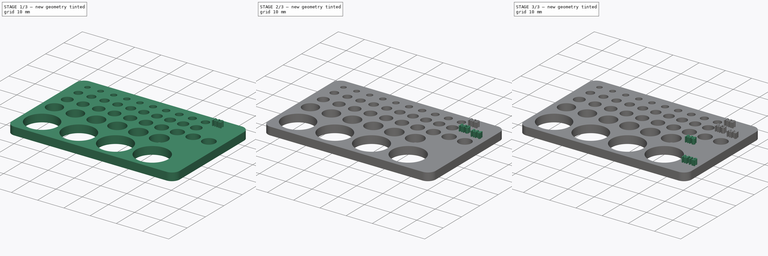
[diagram: build sequence overview — one tinted view per stage of 3, left to right]
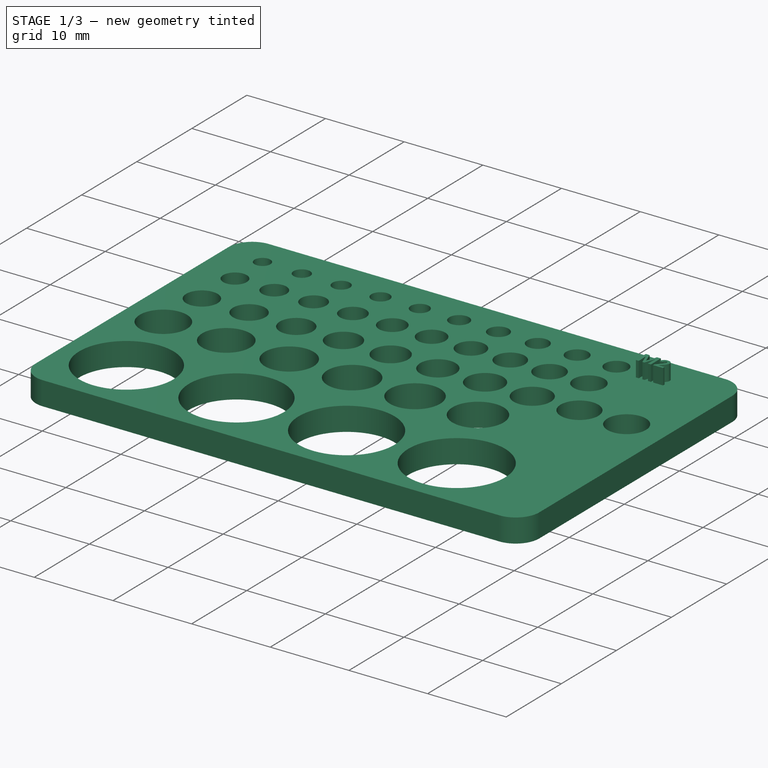
[diagram: stage 1 of 3 — iso view after this stage's code; geometry added in this stage tinted green]
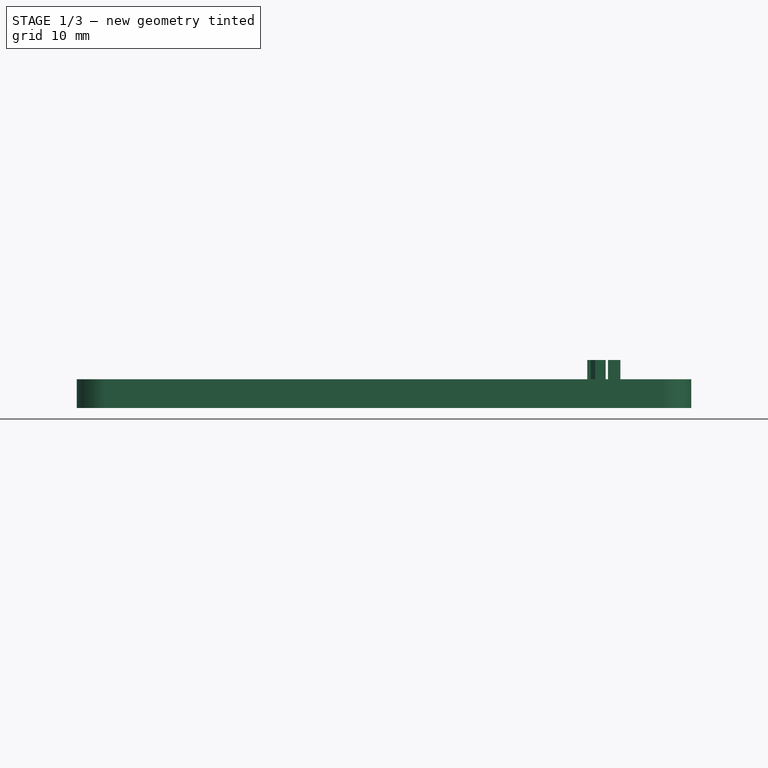
[diagram: stage 1 of 3 — front view after this stage's code; geometry added in this stage tinted green]
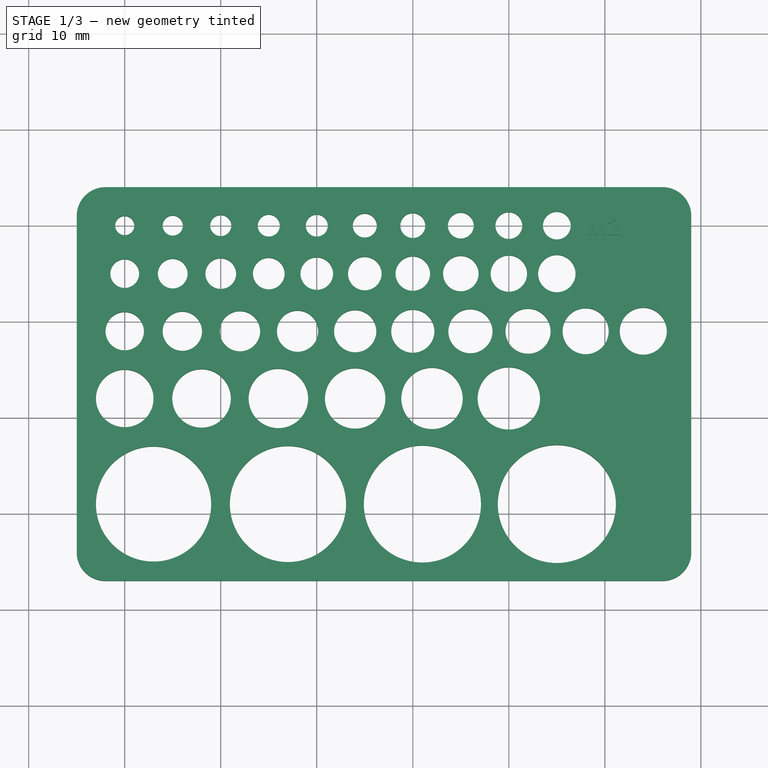
[diagram: stage 1 of 3 — top view after this stage's code; geometry added in this stage tinted green]
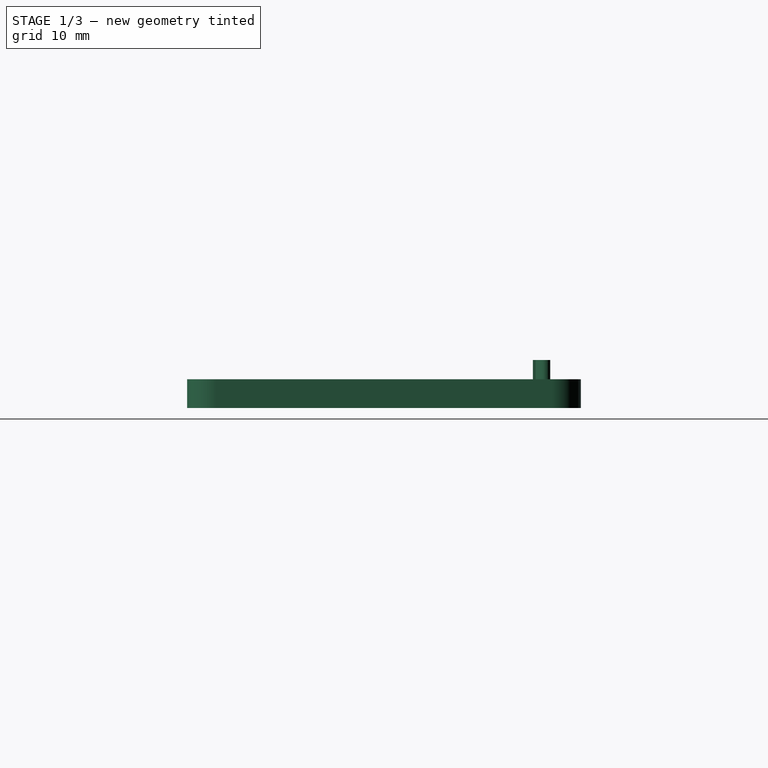
[diagram: stage 1 of 3 — right view after this stage's code; geometry added in this stage tinted green]
FCSTD DOCUMENT  (FreeCAD 0.19R)
Label: skrew-hole-tester
License: All rights reserved
LicenseURL: http://en.wikipedia.org/wiki/All_rights_reserved
objects: PartDesign::Pad×6, Part::Part2DObjectPython×5, Sketcher::SketchObject×1, PartDesign::Body×1
note: 19 computed .brp shape members not serialized (recipe doc carries the construction recipe); baked Part::Feature solids carry a one-line shape summary decoded from their .brp

FEATURE [Sketcher::SketchObject] Sketch
  FullyConstrained = true
  MapMode = 5
  Support = -> [XY_Plane]
  sketch-geometry (48):
    g0: LineSegment StartX=-2 StartY=4 StartZ=0 EndX=56 EndY=4 EndZ=0
    g1: LineSegment StartX=59 StartY=1 StartZ=0 EndX=59 EndY=-34 EndZ=0
    g2: LineSegment StartX=56 StartY=-37 StartZ=0 EndX=-2 EndY=-37 EndZ=0
    g3: LineSegment StartX=-5 StartY=-34 StartZ=0 EndX=-5 EndY=1 EndZ=0
    g4: Circle CenterX=0 CenterY=0 CenterZ=0 NormalX=0 NormalY=0 NormalZ=1 AngleXU=0 Radius=1
    g5: Circle CenterX=5 CenterY=0 CenterZ=0 NormalX=0 NormalY=0 NormalZ=1 AngleXU=0 Radius=1.05
    g6: Circle CenterX=10 CenterY=0 CenterZ=0 NormalX=0 NormalY=0 NormalZ=1 AngleXU=0 Radius=1.1
    g7: Circle CenterX=15 CenterY=0 CenterZ=0 NormalX=0 NormalY=0 NormalZ=1 AngleXU=0 Radius=1.15
    g8: Circle CenterX=20 CenterY=0 CenterZ=0 NormalX=0 NormalY=0 NormalZ=1 AngleXU=0 Radius=1.15
    g9: Circle CenterX=25 CenterY=0 CenterZ=0 NormalX=0 NormalY=0 NormalZ=1 AngleXU=0 Radius=1.25
    g10: Circle CenterX=30 CenterY=0 CenterZ=0 NormalX=0 NormalY=0 NormalZ=1 AngleXU=0 Radius=1.3
    g11: Circle CenterX=35 CenterY=0 CenterZ=0 NormalX=0 NormalY=0 NormalZ=1 AngleXU=0 Radius=1.35
    g12: Circle CenterX=40 CenterY=0 CenterZ=0 NormalX=0 NormalY=0 NormalZ=1 AngleXU=0 Radius=1.4
    g13: Circle CenterX=45 CenterY=0 CenterZ=0 NormalX=0 NormalY=0 NormalZ=1 AngleXU=0 Radius=1.45
    g14: Circle CenterX=0 CenterY=-5 CenterZ=0 NormalX=0 NormalY=0 NormalZ=1 AngleXU=0 Radius=1.5
    g15: Circle CenterX=5 CenterY=-5 CenterZ=0 NormalX=0 NormalY=0 NormalZ=1 AngleXU=0 Radius=1.55
    g16: Circle CenterX=10 CenterY=-5 CenterZ=0 NormalX=0 NormalY=0 NormalZ=1 AngleXU=0 Radius=1.6
    g17: Circle CenterX=15 CenterY=-5 CenterZ=0 NormalX=0 NormalY=0 NormalZ=1 AngleXU=0 Radius=1.65
    g18: Circle CenterX=20 CenterY=-5 CenterZ=0 NormalX=0 NormalY=0 NormalZ=1 AngleXU=0 Radius=1.7
    g19: Circle CenterX=25 CenterY=-5 CenterZ=0 NormalX=0 NormalY=0 NormalZ=1 AngleXU=0 Radius=1.75
    g20: Circle CenterX=30 CenterY=-5 CenterZ=0 NormalX=0 NormalY=0 NormalZ=1 AngleXU=0 Radius=1.8
    g21: Circle CenterX=35 CenterY=-5 CenterZ=0 NormalX=0 NormalY=0 NormalZ=1 AngleXU=0 Radius=1.85
    g22: Circle CenterX=40 CenterY=-5 CenterZ=0 NormalX=0 NormalY=0 NormalZ=1 AngleXU=0 Radius=1.9
    g23: Circle CenterX=45 CenterY=-5 CenterZ=0 NormalX=0 NormalY=0 NormalZ=1 AngleXU=0 Radius=1.95
    g24: Circle CenterX=0 CenterY=-11 CenterZ=0 NormalX=0 NormalY=0 NormalZ=1 AngleXU=0 Radius=2
    g25: Circle CenterX=6 CenterY=-11 CenterZ=0 NormalX=0 NormalY=0 NormalZ=1 AngleXU=0 Radius=2.05
    g26: Circle CenterX=12 CenterY=-11 CenterZ=0 NormalX=0 NormalY=0 NormalZ=1 AngleXU=0 Radius=2.1
    g27: Circle CenterX=18 CenterY=-11 CenterZ=0 NormalX=0 NormalY=0 NormalZ=1 AngleXU=0 Radius=2.15
    g28: Circle CenterX=24 CenterY=-11 CenterZ=0 NormalX=0 NormalY=0 NormalZ=1 AngleXU=0 Radius=2.2
    g29: Circle CenterX=30 CenterY=-11 CenterZ=0 NormalX=0 NormalY=0 NormalZ=1 AngleXU=0 Radius=2.25
    g30: Circle CenterX=36 CenterY=-11 CenterZ=0 NormalX=0 NormalY=0 NormalZ=1 AngleXU=0 Radius=2.3
    g31: Circle CenterX=42 CenterY=-11 CenterZ=0 NormalX=0 NormalY=0 NormalZ=1 AngleXU=0 Radius=2.35
    g32: Circle CenterX=48 CenterY=-11 CenterZ=0 NormalX=0 NormalY=0 NormalZ=1 AngleXU=0 Radius=2.4
    g33: Circle CenterX=54 CenterY=-11 CenterZ=0 NormalX=0 NormalY=0 NormalZ=1 AngleXU=0 Radius=2.45
    g34: Circle CenterX=0 CenterY=-18 CenterZ=0 NormalX=0 NormalY=0 NormalZ=1 AngleXU=0 Radius=3
    g35: Circle CenterX=8 CenterY=-18 CenterZ=0 NormalX=0 NormalY=0 NormalZ=1 AngleXU=0 Radius=3.05
    g36: Circle CenterX=16 CenterY=-18 CenterZ=0 NormalX=0 NormalY=0 NormalZ=1 AngleXU=0 Radius=3.1
    g37: Circle CenterX=24 CenterY=-18 CenterZ=0 NormalX=0 NormalY=0 NormalZ=1 AngleXU=0 Radius=3.15
    g38: Circle CenterX=32 CenterY=-18 CenterZ=0 NormalX=0 NormalY=0 NormalZ=1 AngleXU=0 Radius=3.2
    g39: Circle CenterX=40 CenterY=-18 CenterZ=0 NormalX=0 NormalY=0 NormalZ=1 AngleXU=0 Radius=3.25
    g40: Circle CenterX=3 CenterY=-29 CenterZ=0 NormalX=0 NormalY=0 NormalZ=1 AngleXU=0 Radius=6
    g41: Circle CenterX=17 CenterY=-29 CenterZ=0 NormalX=0 NormalY=0 NormalZ=1 AngleXU=0 Radius=6.05
    g42: Circle CenterX=31 CenterY=-29 CenterZ=0 NormalX=0 NormalY=0 NormalZ=1 AngleXU=0 Radius=6.1
    g43: Circle CenterX=45 CenterY=-29 CenterZ=0 NormalX=0 NormalY=0 NormalZ=1 AngleXU=0 Radius=6.15
    g44: ArcOfCircle CenterX=56 CenterY=-34 CenterZ=0 NormalX=0 NormalY=0 NormalZ=1 AngleXU=0 Radius=3 StartAngle=4.71239 EndAngle=6.28319
    g45: ArcOfCircle CenterX=56 CenterY=1 CenterZ=0 NormalX=0 NormalY=0 NormalZ=1 AngleXU=0 Radius=3 StartAngle=0 EndAngle=1.5708
    g46: ArcOfCircle CenterX=-2 CenterY=1 CenterZ=0 NormalX=0 NormalY=0 NormalZ=1 AngleXU=0 Radius=3 StartAngle=1.5708 EndAngle=3.14159
    g47: ArcOfCircle CenterX=-2 CenterY=-34 CenterZ=0 NormalX=0 NormalY=0 NormalZ=1 AngleXU=0 Radius=3 StartAngle=3.14159 EndAngle=4.71239
  constraints (139):
    c: Horizontal(g0)
    c: Horizontal(g2)
    c: Vertical(g1)
    c: Vertical(g3)
    c: Coincident(g4,g-1)
    c: Diameter(g4) = 2
    c: PointOnObject(g5,g-1)
    c: PointOnObject(g6,g-1)
    c: PointOnObject(g7,g-1)
    c: Diameter(g5) = 2.1
    c: Diameter(g6) = 2.2
    c: Diameter(g7) = 2.3
    c: PointOnObject(g8,g-1)
    c: PointOnObject(g9,g-1)
    c: PointOnObject(g10,g-1)
    c: PointOnObject(g11,g-1)
    c: PointOnObject(g12,g-1)
    c: Diameter(g8) = 2.3
    c: Diameter(g9) = 2.5
    c: Diameter(g10) = 2.6
    c: Diameter(g11) = 2.7
    c: Diameter(g12) = 2.8
    c: PointOnObject(g13,g-1)
    c: Diameter(g13) = 2.9
    c: DistanceX(g4,g5) = 5
    c: DistanceX(g5,g6) = 5
    c: DistanceX(g6,g7) = 5
    c: DistanceX(g7,g8) = 5
    c: DistanceX(g9,g10) = 5
    c: DistanceX(g10,g11) = 5
    c: DistanceX(g11,g12) = 5
    c: DistanceX(g12,g13) = 5
    c: PointOnObject(g14,g-2)
    c: Diameter(g14) = 3
    c: DistanceY(g14,g4) = 5
    c: Horizontal(g15,g16)
    c: Horizontal(g16,g17)
    c: Horizontal(g17,g14)
    c: Horizontal(g17,g18)
    c: Horizontal(g18,g19)
    c: Diameter(g15) = 3.1
    c: Diameter(g16) = 3.2
    c: Diameter(g17) = 3.3
    c: Diameter(g18) = 3.4
    c: Diameter(g19) = 3.5
    c: Diameter(g20) = 3.6
    c: Diameter(g21) = 3.7
    c: Diameter(g22) = 3.8
    c: Diameter(g23) = 3.9
    c: DistanceX(g8,g9) = 5
    c: DistanceX(g14,g15) = 5
    c: DistanceX(g15,g16) = 5
    c: DistanceX(g16,g17) = 5
    c: DistanceX(g17,g18) = 5
    c: DistanceX(g18,g19) = 5
    c: DistanceX(g19,g20) = 5
    c: DistanceX(g20,g21) = 5
    c: Horizontal(g20,g19)
    c: DistanceX(g21,g22) = 5
    c: DistanceX(g22,g23) = 5
    c: Horizontal(g21,g22)
    c: Horizontal(g22,g23)
    c: Horizontal(g23,g20)
    c: PointOnObject(g24,g-2)
    c: DistanceY(g24,g14) = 6
    c: Diameter(g24) = 4
    c: Horizontal(g25,g26)
    c: Horizontal(g26,g27)
    c: Horizontal(g27,g28)
    c: Horizontal(g28,g29)
    c: Horizontal(g29,g30)
    c: Horizontal(g30,g31)
    c: Horizontal(g31,g32)
    c: Horizontal(g32,g33)
    c: Diameter(g25) = 4.1
    c: Diameter(g26) = 4.2
    c: Diameter(g27) = 4.3
    c: Diameter(g28) = 4.4
    c: Diameter(g29) = 4.5
    c: Diameter(g30) = 4.6
    c: Diameter(g31) = 4.7
    c: Diameter(g32) = 4.8
    c: Diameter(g33) = 4.9
    c: DistanceX(g24,g25) = 6
    c: DistanceX(g32,g33) = 6
    c: DistanceX(g25,g26) = 6
    c: DistanceX(g26,g27) = 6
    c: Horizontal(g25,g24)
    c: DistanceX(g27,g28) = 6
    c: DistanceX(g28,g29) = 6
    c: DistanceX(g29,g30) = 6
    c: DistanceX(g30,g31) = 6
    c: DistanceX(g31,g32) = 6
    c: PointOnObject(g34,g-2)
    c: Diameter(g34) = 6
    c: Horizontal(g38,g37)
    c: Horizontal(g37,g36)
    c: Horizontal(g36,g35)
    c: Horizontal(g35,g34)
    c: Diameter(g35) = 6.1
    c: Diameter(g36) = 6.2
    c: Diameter(g37) = 6.3
    c: Diameter(g38) = 6.4
    c: Horizontal(g39,g38)
    c: Diameter(g39) = 6.5
    c: DistanceY(g34,g24) = 7
    c: DistanceX(g34,g35) = 8
    c: DistanceX(g35,g36) = 8
    c: DistanceX(g36,g37) = 8
    c: DistanceX(g37,g38) = 8
    c: DistanceX(g38,g39) = 8
    c: Diameter(g40) = 12
    c: DistanceX(g4,g40) = 3
    c: DistanceY(g40,g34) = 11
    c: Diameter(g41) = 12.1
    c: Diameter(g42) = 12.2
    c: Diameter(g43) = 12.3
    c: Horizontal(g40,g41)
    c: Horizontal(g41,g42)
    c: Horizontal(g42,g43)
    c: DistanceX(g40,g41) = 14
    c: DistanceX(g41,g42) = 14
    c: DistanceX(g42,g43) = 14
    c: Tangent(g1,g44) = 1.5708
    c: Tangent(g2,g44) = 1.5708
    c: Tangent(g0,g45) = 1.5708
    c: Tangent(g1,g45) = 1.5708
    c: Tangent(g0,g46) = 1.5708
    c: Tangent(g3,g46) = 1.5708
    c: Tangent(g2,g47) = 1.5708
    c: Tangent(g3,g47) = 1.5708
    c: DistanceX(g3,g47) = 3
    c: DistanceX(g3,g0) = 3
    c: DistanceX(g0,g1) = 3
    c: DistanceX(g2,g1) = 3
    c: DistanceX(g3,g40) = 8
    c: DistanceY(g2,g40) = 8
    c: DistanceX(g33,g1) = 5
    c: DistanceY(g4,g0) = 4
FEATURE [PartDesign::Pad] Pad
  Direction = (1,1,1)
  Length = 3
  Length2 = 100
  Profile = -> Sketch
  Type = 0
FEATURE [Part::Part2DObjectPython] ShapeString  # Draft 2D object (typed FeaturePython)
  AttachmentOffset = pos=(48,-1,0) rot=(0,0,1;0rad)
  FontFile = <userpath>/libraries/font/Roboto-Bold.ttf
  MapMode = 5
  Placement = pos=(48,-1,3) rot=(0,0,1;0rad)
  Size = 2
  String = M2
  Support = -> [Pad]
  Tracking = 0
FEATURE [PartDesign::Pad] Pad001
  BaseFeature = -> Pad
  Direction = (1,1,1)
  Length = 2
  Length2 = 100
  Profile = -> ShapeString
  Type = 0
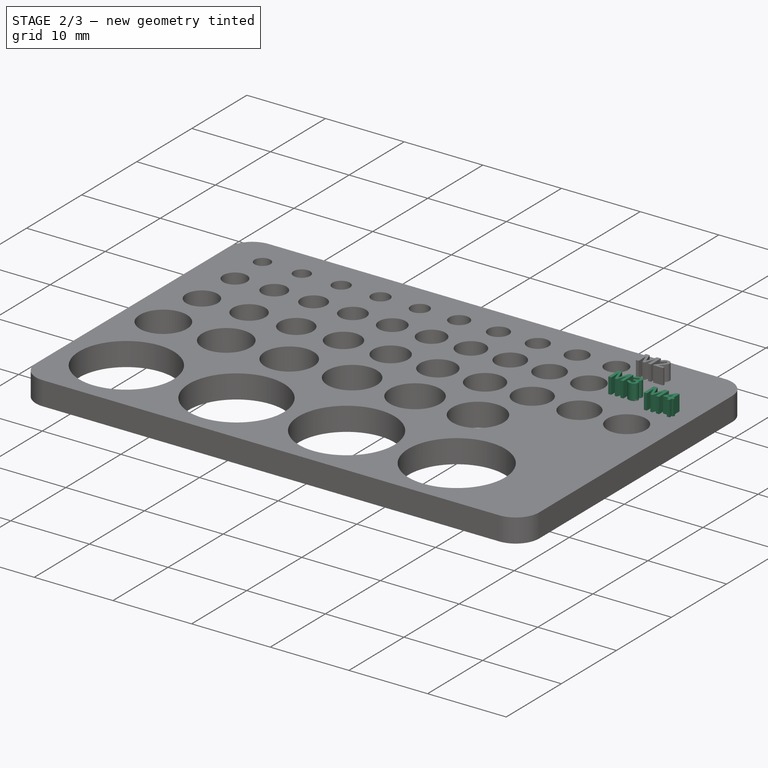
[diagram: stage 2 of 3 — iso view after this stage's code; geometry added in this stage tinted green]
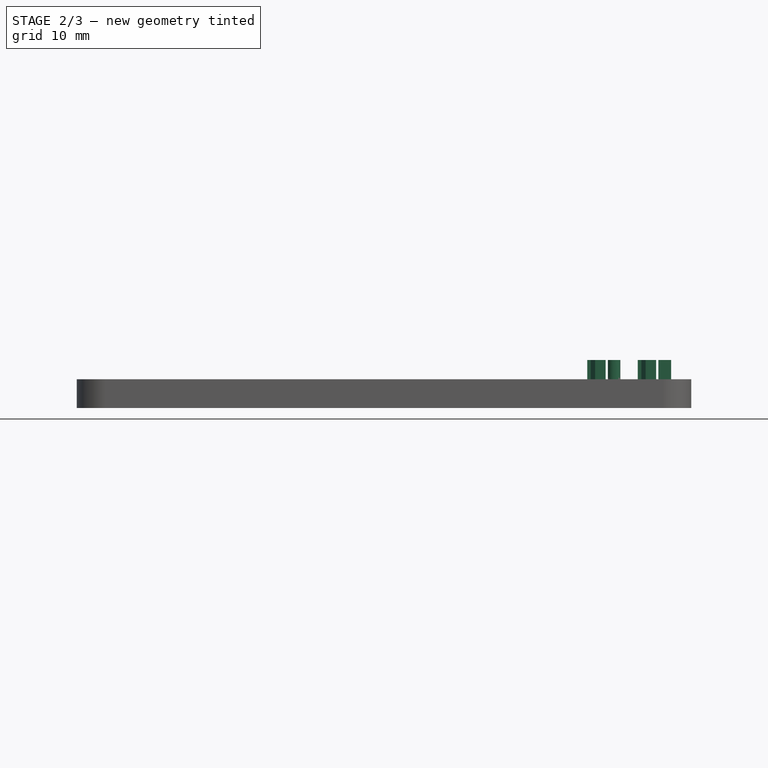
[diagram: stage 2 of 3 — front view after this stage's code; geometry added in this stage tinted green]
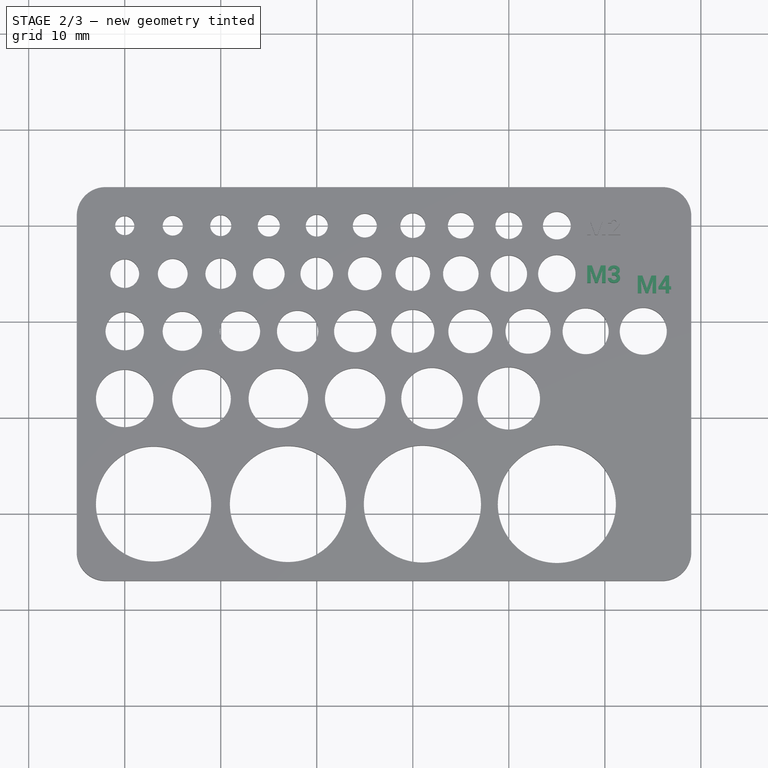
[diagram: stage 2 of 3 — top view after this stage's code; geometry added in this stage tinted green]
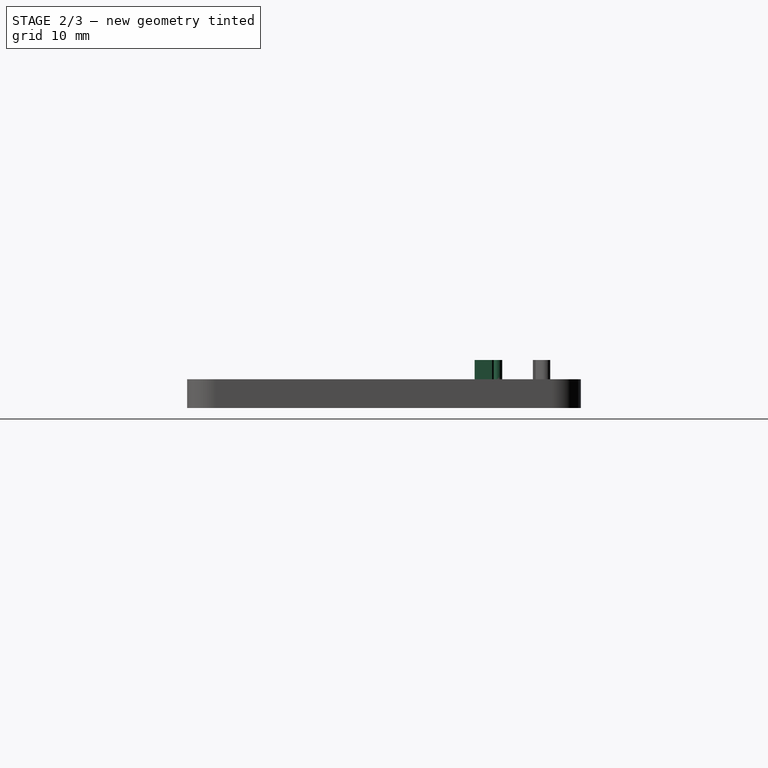
[diagram: stage 2 of 3 — right view after this stage's code; geometry added in this stage tinted green]
FEATURE [Part::Part2DObjectPython] ShapeString001  # Draft 2D object (typed FeaturePython)
  FontFile = <userpath>/libraries/font/Roboto-Bold.ttf
  Placement = pos=(48,-6,3) rot=(0,0,1;0rad)
  Size = 2
  String = M3
  Tracking = 0
FEATURE [PartDesign::Pad] Pad002
  BaseFeature = -> Pad001
  Direction = (1,1,1)
  Length = 2
  Length2 = 100
  Profile = -> ShapeString001
  Type = 0
FEATURE [Part::Part2DObjectPython] ShapeString002  # Draft 2D object (typed FeaturePython)
  FontFile = <userpath>/libraries/font/Roboto-Bold.ttf
  Placement = pos=(53.26,-7.06,3) rot=(0.945214,0.023572,-0.3256;0rad)
  Size = 2
  String = M4
  Tracking = 0
FEATURE [Part::Part2DObjectPython] ShapeString003  # Draft 2D object (typed FeaturePython)
  FontFile = <userpath>/libraries/font/Roboto-Bold.ttf
  Placement = pos=(45,-18,3) rot=(0.945214,0.023572,-0.3256;0rad)
  Size = 2
  String = M6
  Tracking = 0
FEATURE [Part::Part2DObjectPython] ShapeString004  # Draft 2D object (typed FeaturePython)
  FontFile = <userpath>/libraries/font/Roboto-Bold.ttf
  Placement = pos=(52.71,-30.75,3) rot=(0,0,1;0rad)
  Size = 2
  String = M12
  Tracking = 0
FEATURE [PartDesign::Pad] Pad003
  BaseFeature = -> Pad002
  Direction = (1,1,1)
  Length = 2
  Length2 = 100
  Profile = -> ShapeString002
  Type = 0
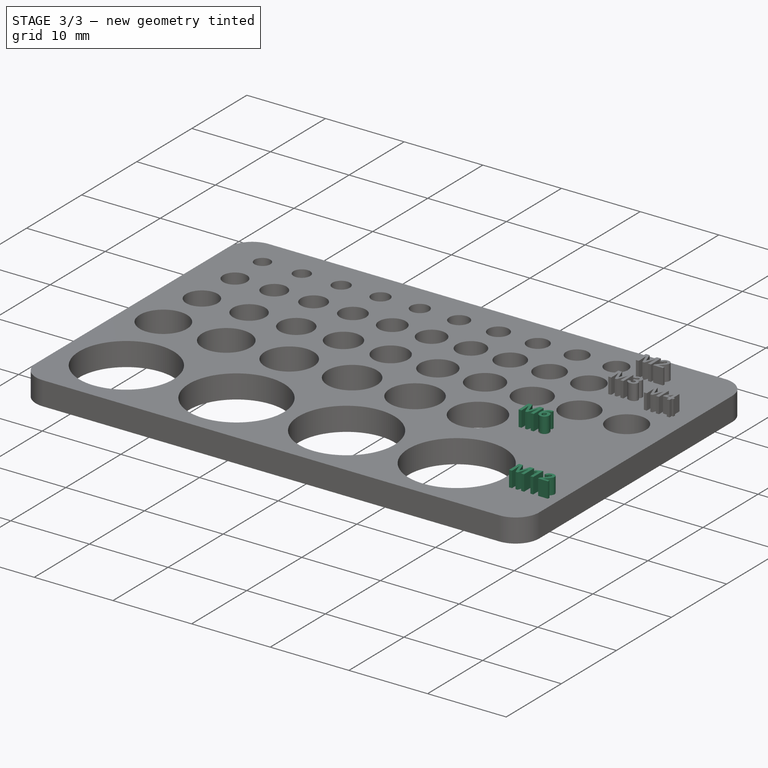
[diagram: stage 3 of 3 — iso view after this stage's code; geometry added in this stage tinted green]
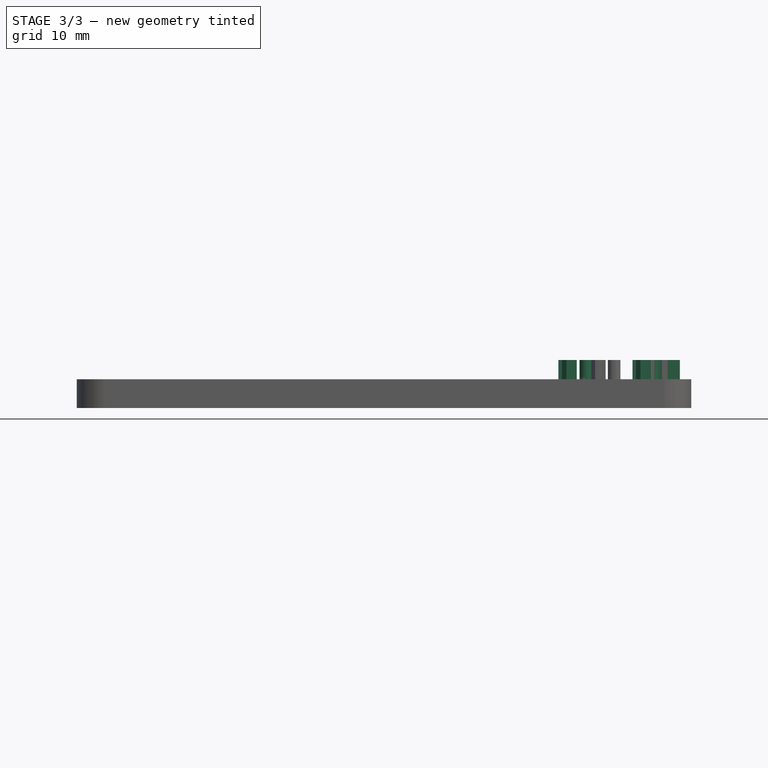
[diagram: stage 3 of 3 — front view after this stage's code; geometry added in this stage tinted green]
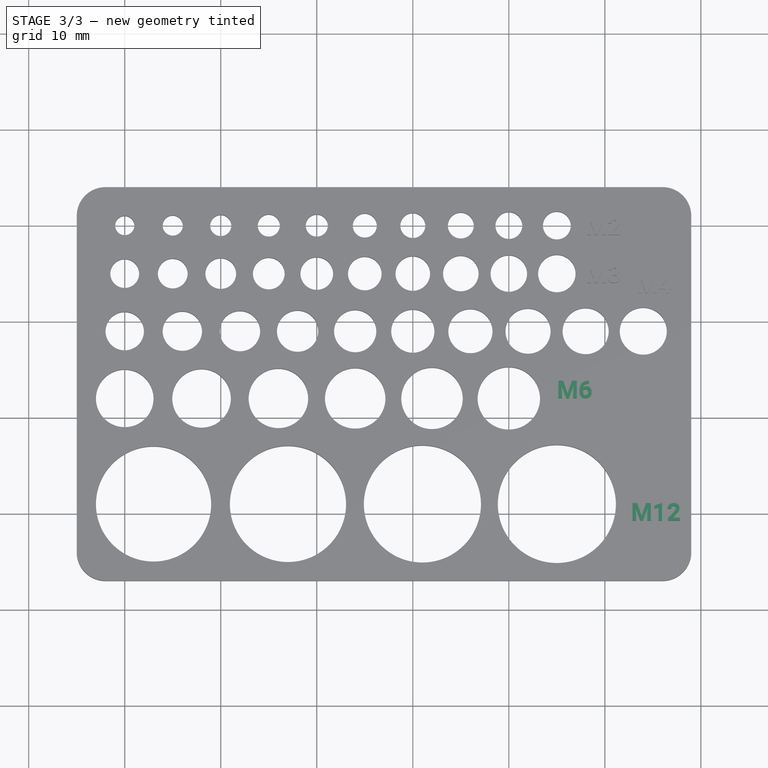
[diagram: stage 3 of 3 — top view after this stage's code; geometry added in this stage tinted green]
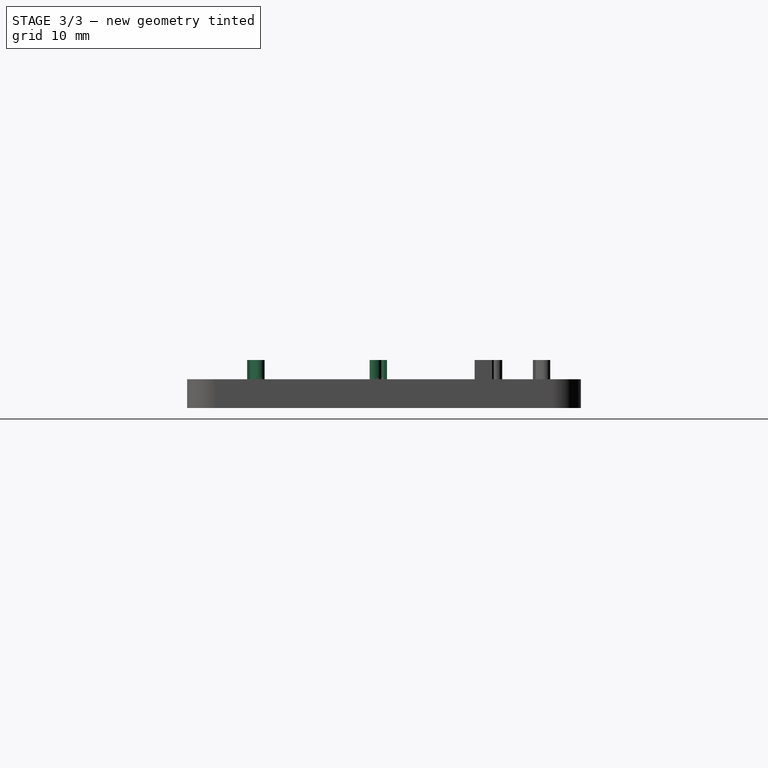
[diagram: stage 3 of 3 — right view after this stage's code; geometry added in this stage tinted green]
FEATURE [PartDesign::Pad] Pad004
  BaseFeature = -> Pad003
  Direction = (1,1,1)
  Length = 2
  Length2 = 100
  Profile = -> ShapeString003
  Type = 0
FEATURE [PartDesign::Pad] Pad005
  BaseFeature = -> Pad004
  Direction = (1,1,1)
  Length = 2
  Length2 = 100
  Profile = -> ShapeString004
  Type = 0
FEATURE [PartDesign::Body] Body
  Group = -> [Sketch,Pad,ShapeString,Pad001,ShapeString001,Pad002,ShapeString002,ShapeString003,ShapeString004,Pad003,Pad004,Pad005]
  Origin = -> Origin
  Tip = -> Pad005
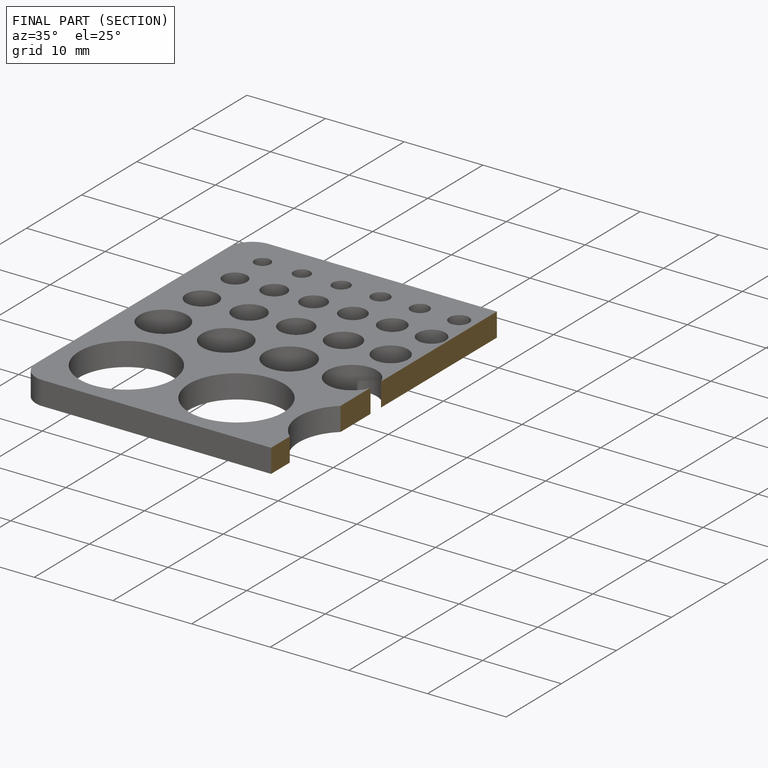
[diagram: finished part — half-section view (interior)]
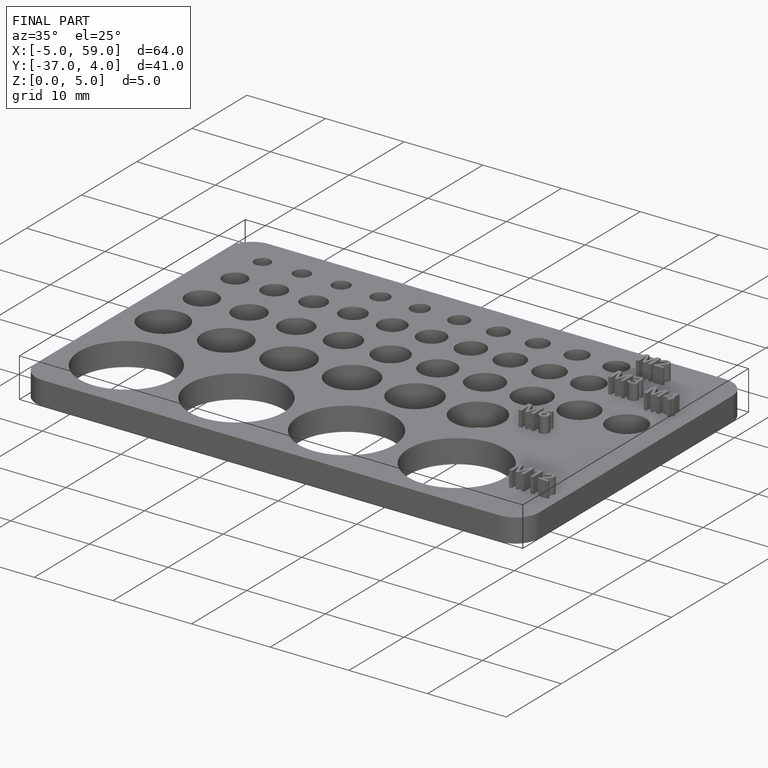
[diagram: finished part — iso view with bounding-box wireframe]
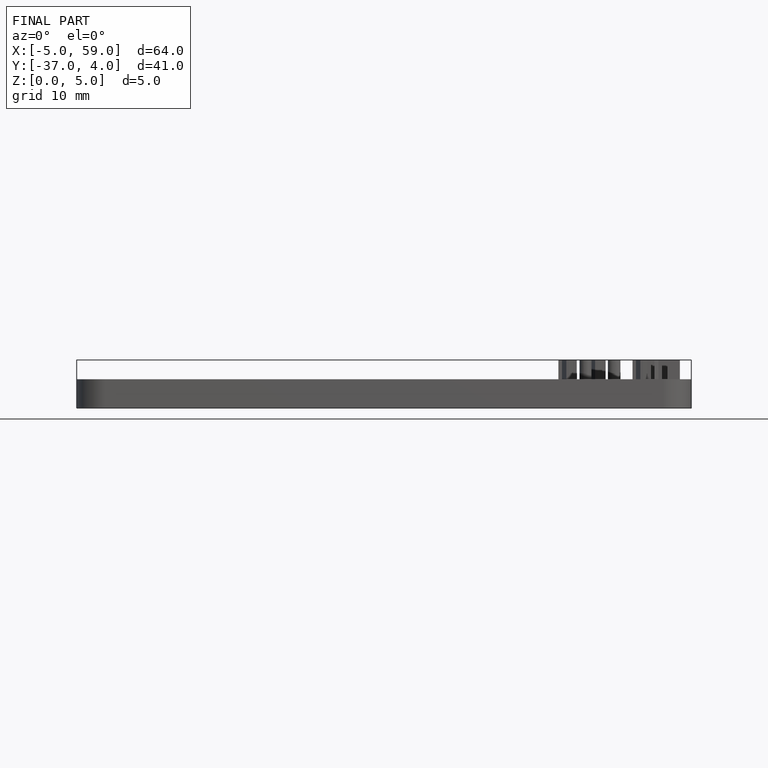
[diagram: finished part — front view with bounding-box wireframe]
